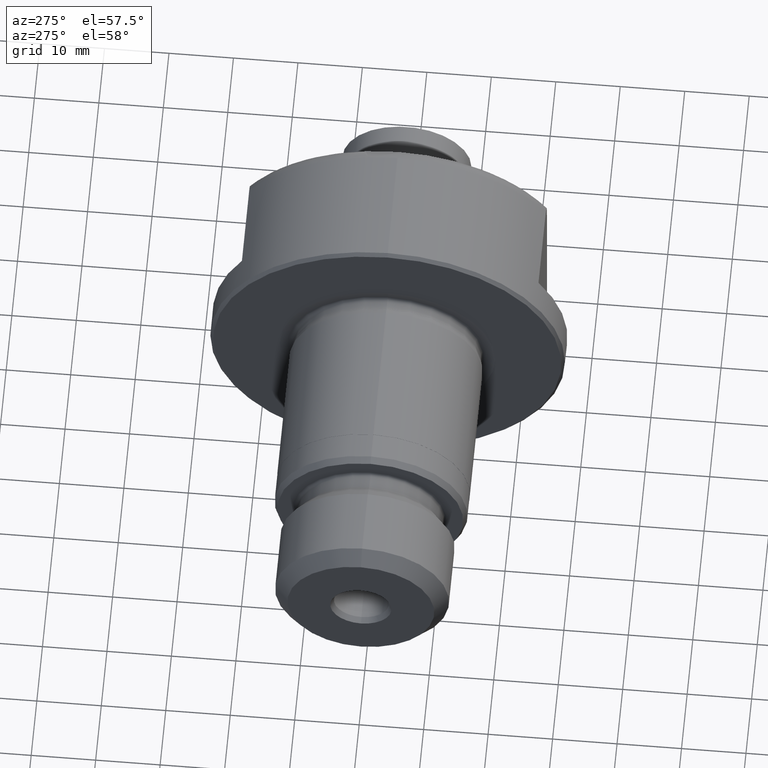
[diagram: clean part render]
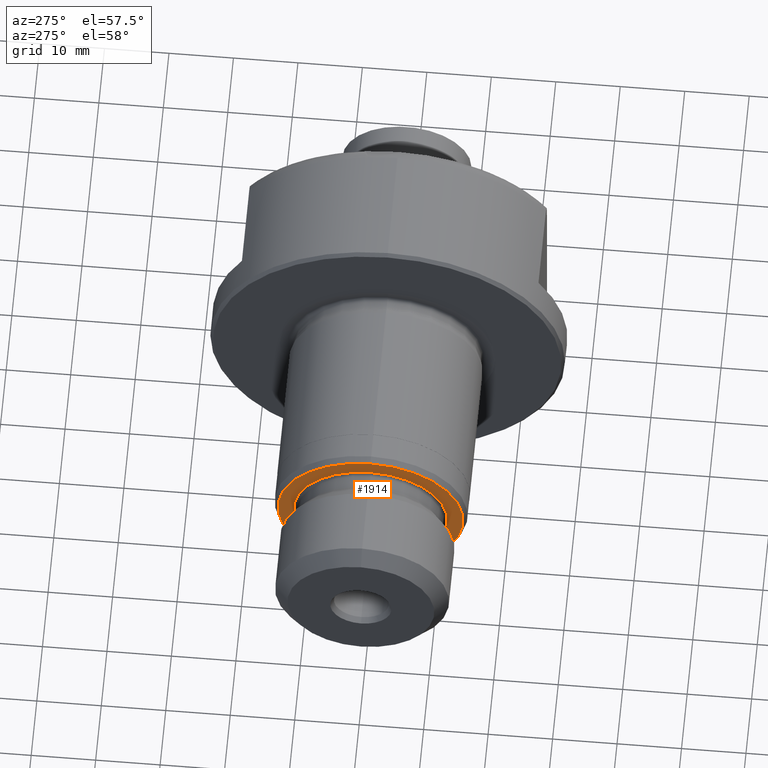
[diagram: same view with one face highlighted and labeled with its STEP entity id]
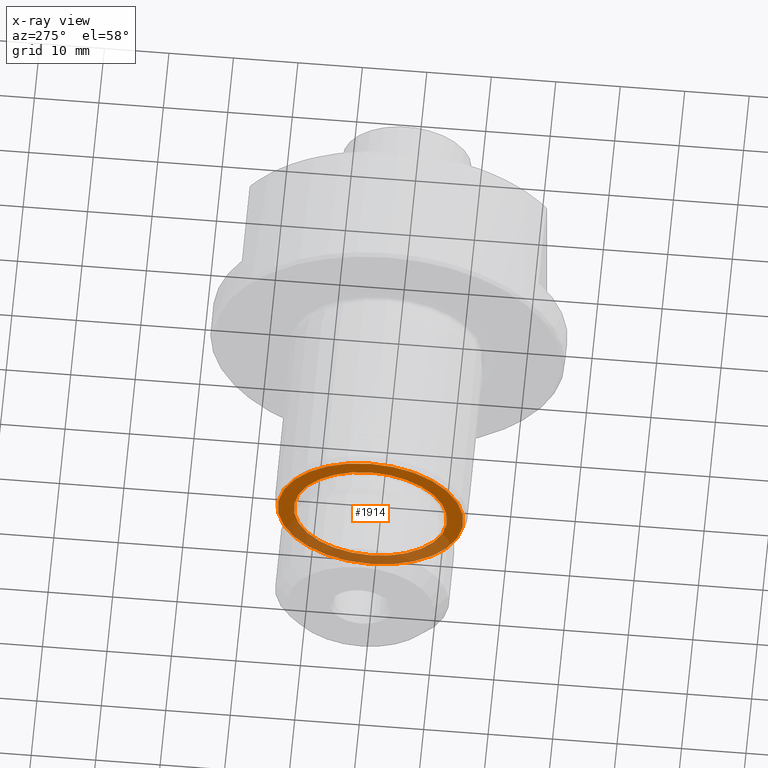
[diagram: x-ray of the same camera — body ghosted, the highlighted face saturated]
A machine part, auxiliary view. The second image highlights one B-rep face of the part: STEP entity #1914.
The next image is the same camera in x-ray: the body ghosted, the highlighted face saturated — about 38% of this face is hidden behind the body in this view.
In plain terms, the highlighted planar face has unit normal (-1, 0, 0).
Its self-contained STEP definition (entity closure, byte-faithful):
#49 = AXIS2_PLACEMENT_3D ( 'NONE', #424, #784, #794 ) ;
#81 = FACE_OUTER_BOUND ( 'NONE', #1509, .T. ) ;
#97 = FACE_BOUND ( 'NONE', #1516, .T. ) ;
#101 = CARTESIAN_POINT ( 'NONE',  ( -29.89999999999999500, 0.0000000000000000000, 0.0000000000000000000 ) ) ;
#128 = DIRECTION ( 'NONE',  ( 0.0000000000000000000, 0.0000000000000000000, -1.000000000000000000 ) ) ;
#303 = CIRCLE ( 'NONE', #1101, 14.39764973081036300 ) ;
#322 = CIRCLE ( 'NONE', #1345, 11.89999999999999100 ) ;
#395 = CARTESIAN_POINT ( 'NONE',  ( -29.89999999999999500, 0.0000000000000000000, 0.0000000000000000000 ) ) ;
#402 = DIRECTION ( 'NONE',  ( 1.000000000000000000, -0.0000000000000000000, -0.0000000000000000000 ) ) ;
#407 = DIRECTION ( 'NONE',  ( 0.0000000000000000000, 0.0000000000000000000, -1.000000000000000000 ) ) ;
#423 = EDGE_CURVE ( 'NONE', #1073, #1631, #793, .T. ) ;
#424 = CARTESIAN_POINT ( 'NONE',  ( -29.89999999999999900, 11.89999999999999100, 0.0000000000000000000 ) ) ;
#452 = EDGE_CURVE ( 'NONE', #1166, #1945, #791, .T. ) ;
#595 = CARTESIAN_POINT ( 'NONE',  ( -29.89999999999999500, 1.457329690985349600E-015, 11.89999999999999100 ) ) ;
#784 = DIRECTION ( 'NONE',  ( -1.000000000000000000, 0.0000000000000000000, 0.0000000000000000000 ) ) ;
#791 = CIRCLE ( 'NONE', #1997, 11.89999999999999100 ) ;
#793 = CIRCLE ( 'NONE', #1731, 14.39764973081036300 ) ;
#794 = DIRECTION ( 'NONE',  ( 0.0000000000000000000, 0.0000000000000000000, 1.000000000000000000 ) ) ;
#799 = CARTESIAN_POINT ( 'NONE',  ( -29.89999999999999500, 0.0000000000000000000, -11.89999999999999100 ) ) ;
#806 = PLANE ( 'NONE',  #49 ) ;
#1044 = DIRECTION ( 'NONE',  ( 1.000000000000000000, -0.0000000000000000000, -0.0000000000000000000 ) ) ;
#1063 = ORIENTED_EDGE ( 'NONE', *, *, #1304, .F. ) ;
#1073 = VERTEX_POINT ( 'NONE', #1321 ) ;
#1090 = ORIENTED_EDGE ( 'NONE', *, *, #423, .F. ) ;
#1101 = AXIS2_PLACEMENT_3D ( 'NONE', #395, #402, #407 ) ;
#1166 = VERTEX_POINT ( 'NONE', #595 ) ;
#1172 = ORIENTED_EDGE ( 'NONE', *, *, #452, .T. ) ;
#1177 = ORIENTED_EDGE ( 'NONE', *, *, #1296, .T. ) ;
#1296 = EDGE_CURVE ( 'NONE', #1945, #1166, #322, .T. ) ;
#1304 = EDGE_CURVE ( 'NONE', #1631, #1073, #303, .T. ) ;
#1321 = CARTESIAN_POINT ( 'NONE',  ( -29.89999999999999500, 0.0000000000000000000, -14.39764973081036300 ) ) ;
#1345 = AXIS2_PLACEMENT_3D ( 'NONE', #101, #1044, #128 ) ;
#1509 = EDGE_LOOP ( 'NONE', ( #1090, #1063 ) ) ;
#1516 = EDGE_LOOP ( 'NONE', ( #1177, #1172 ) ) ;
#1631 = VERTEX_POINT ( 'NONE', #1668 ) ;
#1668 = CARTESIAN_POINT ( 'NONE',  ( -29.89999999999999500, 1.798556073765663500E-015, 14.39764973081036300 ) ) ;
#1712 = CARTESIAN_POINT ( 'NONE',  ( -29.89999999999999500, 0.0000000000000000000, 0.0000000000000000000 ) ) ;
#1716 = DIRECTION ( 'NONE',  ( 1.000000000000000000, -0.0000000000000000000, -0.0000000000000000000 ) ) ;
#1718 = DIRECTION ( 'NONE',  ( 0.0000000000000000000, 0.0000000000000000000, -1.000000000000000000 ) ) ;
#1731 = AXIS2_PLACEMENT_3D ( 'NONE', #1712, #1716, #1718 ) ;
#1773 = CARTESIAN_POINT ( 'NONE',  ( -29.89999999999999500, 0.0000000000000000000, 0.0000000000000000000 ) ) ;
#1787 = DIRECTION ( 'NONE',  ( 1.000000000000000000, -0.0000000000000000000, -0.0000000000000000000 ) ) ;
#1799 = DIRECTION ( 'NONE',  ( 0.0000000000000000000, 0.0000000000000000000, -1.000000000000000000 ) ) ;
#1914 = ADVANCED_FACE ( 'NONE', ( #97, #81 ), #806, .T. ) ;
#1945 = VERTEX_POINT ( 'NONE', #799 ) ;
#1997 = AXIS2_PLACEMENT_3D ( 'NONE', #1773, #1787, #1799 ) ;